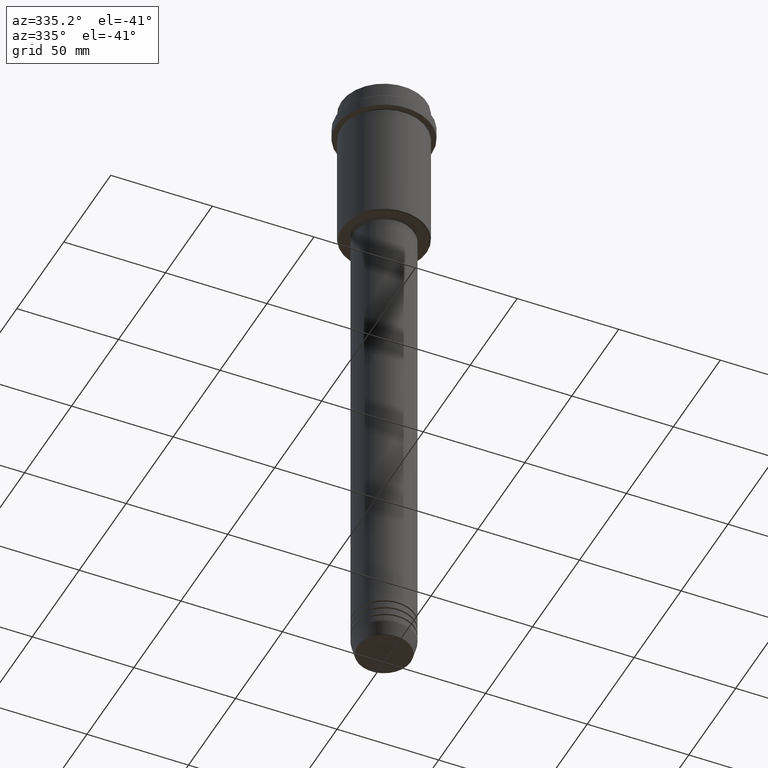
[diagram: clean part render]
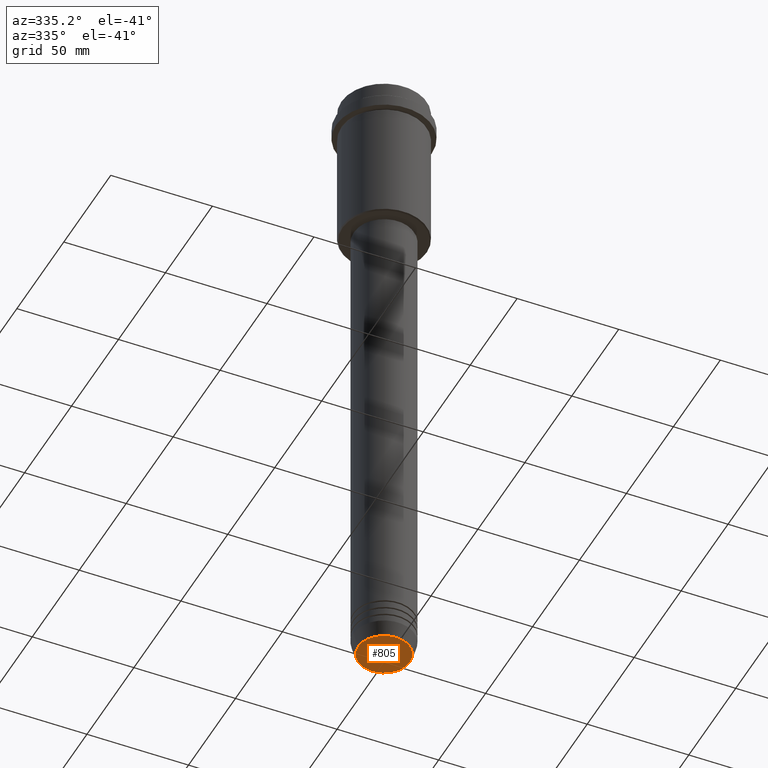
[diagram: same view with one face highlighted and labeled with its STEP entity id]
A machine part, auxiliary view. The second image highlights one B-rep face of the part: STEP entity #805.
In plain terms, the highlighted planar face has unit normal (0, -0, 1).
Its self-contained STEP definition (entity closure, byte-faithful):
#37 = DIRECTION ( 'NONE',  ( 1.000000000000000000, 0.000000000000000000, 0.000000000000000000 ) ) ;
#56 = AXIS2_PLACEMENT_3D ( 'NONE', #677, #686, #231 ) ;
#143 = FACE_OUTER_BOUND ( 'NONE', #1138, .T. ) ;
#149 = EDGE_CURVE ( 'NONE', #439, #370, #1019, .T. ) ;
#231 = DIRECTION ( 'NONE',  ( 1.000000000000000000, 0.000000000000000000, 0.000000000000000000 ) ) ;
#268 = ORIENTED_EDGE ( 'NONE', *, *, #149, .T. ) ;
#370 = VERTEX_POINT ( 'NONE', #972 ) ;
#400 = AXIS2_PLACEMENT_3D ( 'NONE', #517, #411, #1153 ) ;
#411 = DIRECTION ( 'NONE',  ( 0.000000000000000000, 0.000000000000000000, -1.000000000000000000 ) ) ;
#439 = VERTEX_POINT ( 'NONE', #1194 ) ;
#487 = AXIS2_PLACEMENT_3D ( 'NONE', #1146, #588, #37 ) ;
#517 = CARTESIAN_POINT ( 'NONE',  ( 0.000000000000000000, 0.000000000000000000, -320.0000000000000000 ) ) ;
#588 = DIRECTION ( 'NONE',  ( 0.000000000000000000, -0.000000000000000000, 1.000000000000000000 ) ) ;
#677 = CARTESIAN_POINT ( 'NONE',  ( 0.000000000000000000, 0.000000000000000000, -320.0000000000000000 ) ) ;
#686 = DIRECTION ( 'NONE',  ( 0.000000000000000000, 0.000000000000000000, -1.000000000000000000 ) ) ;
#756 = EDGE_CURVE ( 'NONE', #370, #439, #1294, .T. ) ;
#805 = ADVANCED_FACE ( 'NONE', ( #143 ), #1020, .F. ) ;
#972 = CARTESIAN_POINT ( 'NONE',  ( 12.74069215899265828, 0.000000000000000000, -320.0000000000000000 ) ) ;
#1019 = CIRCLE ( 'NONE', #56, 12.74069215899265828 ) ;
#1020 = PLANE ( 'NONE',  #487 ) ;
#1050 = ORIENTED_EDGE ( 'NONE', *, *, #756, .T. ) ;
#1138 = EDGE_LOOP ( 'NONE', ( #1050, #268 ) ) ;
#1146 = CARTESIAN_POINT ( 'NONE',  ( 0.000000000000000000, 0.000000000000000000, -320.0000000000000000 ) ) ;
#1153 = DIRECTION ( 'NONE',  ( 1.000000000000000000, 0.000000000000000000, 0.000000000000000000 ) ) ;
#1194 = CARTESIAN_POINT ( 'NONE',  ( -12.74069215899265828, 1.589857736427680246E-15, -320.0000000000000000 ) ) ;
#1294 = CIRCLE ( 'NONE', #400, 12.74069215899265828 ) ;